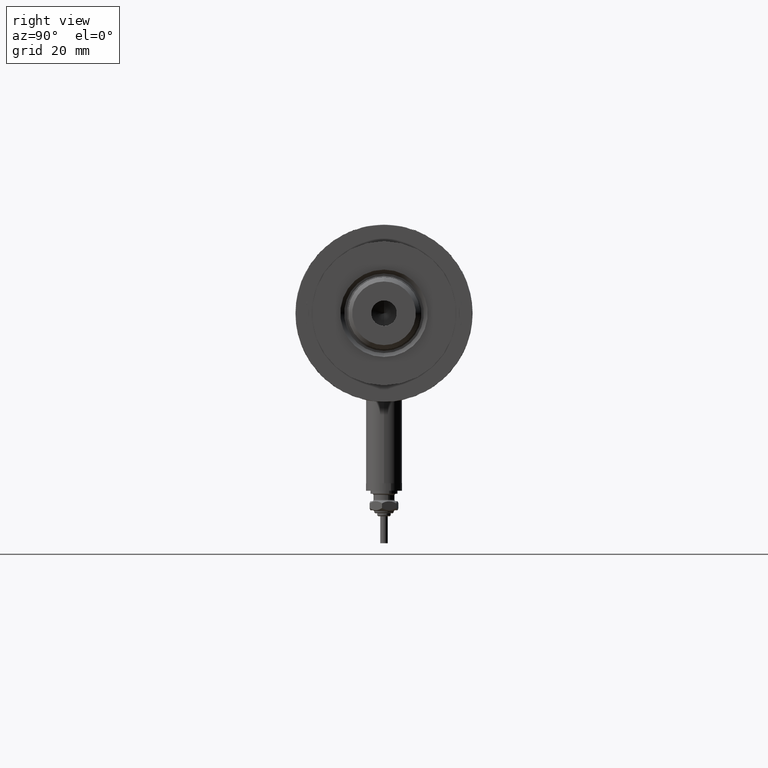
[diagram: clean part render]
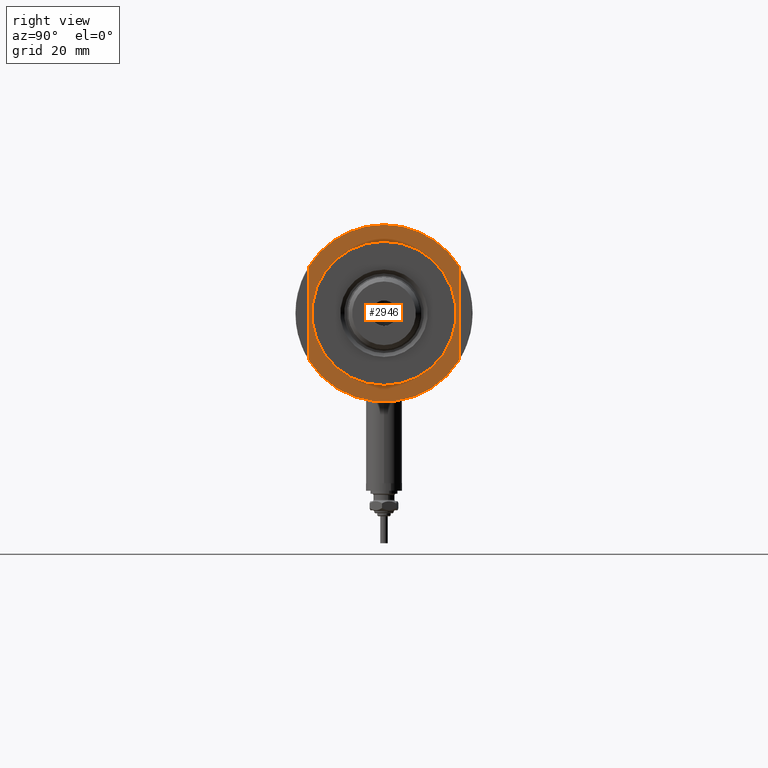
[diagram: same view with one face highlighted and labeled with its STEP entity id]
A machine part, right view. The second image highlights one B-rep face of the part: STEP entity #2946.
In plain terms, the highlighted planar face has unit normal (1, 0, -0).
Its self-contained STEP definition (entity closure, byte-faithful):
#224 = CARTESIAN_POINT ( 'NONE',  ( 0.000000000000000000, 0.000000000000000000, 21.00000000000000000 ) ) ;
#276 = ORIENTED_EDGE ( 'NONE', *, *, #3328, .T. ) ;
#454 = AXIS2_PLACEMENT_3D ( 'NONE', #3669, #3276, #5032 ) ;
#484 = VERTEX_POINT ( 'NONE', #3601 ) ;
#522 = EDGE_CURVE ( 'NONE', #2644, #4560, #1792, .T. ) ;
#681 = EDGE_CURVE ( 'NONE', #4631, #4560, #2329, .T. ) ;
#1000 = EDGE_LOOP ( 'NONE', ( #3860, #3229, #1197, #3022, #1130 ) ) ;
#1069 = DIRECTION ( 'NONE',  ( -0.000000000000000000, -0.000000000000000000, -1.000000000000000000 ) ) ;
#1130 = ORIENTED_EDGE ( 'NONE', *, *, #522, .T. ) ;
#1133 = EDGE_LOOP ( 'NONE', ( #5897, #276 ) ) ;
#1172 = EDGE_CURVE ( 'NONE', #1662, #3003, #5141, .T. ) ;
#1181 = VERTEX_POINT ( 'NONE', #5208 ) ;
#1197 = ORIENTED_EDGE ( 'NONE', *, *, #1172, .F. ) ;
#1250 = AXIS2_PLACEMENT_3D ( 'NONE', #224, #3470, #4831 ) ;
#1294 = PLANE ( 'NONE',  #2859 ) ;
#1343 = CIRCLE ( 'NONE', #1250, 29.50000000000000355 ) ;
#1462 = EDGE_CURVE ( 'NONE', #1662, #2644, #5738, .T. ) ;
#1607 = DIRECTION ( 'NONE',  ( 1.000000000000000000, 0.000000000000000000, 0.000000000000000000 ) ) ;
#1646 = DIRECTION ( 'NONE',  ( 1.000000000000000000, 0.000000000000000000, 0.000000000000000000 ) ) ;
#1662 = VERTEX_POINT ( 'NONE', #5611 ) ;
#1693 = DIRECTION ( 'NONE',  ( 1.000000000000000000, 0.000000000000000000, 0.000000000000000000 ) ) ;
#1755 = CARTESIAN_POINT ( 'NONE',  ( 0.000000000000000000, 0.000000000000000000, 21.00000000000000000 ) ) ;
#1792 = CIRCLE ( 'NONE', #4567, 29.50000000000000355 ) ;
#1956 = EDGE_CURVE ( 'NONE', #484, #1181, #4008, .T. ) ;
#2002 = DIRECTION ( 'NONE',  ( 1.000000000000000000, 0.000000000000000000, 0.000000000000000000 ) ) ;
#2020 = AXIS2_PLACEMENT_3D ( 'NONE', #3871, #1069, #1607 ) ;
#2211 = FACE_OUTER_BOUND ( 'NONE', #1000, .T. ) ;
#2329 = LINE ( 'NONE', #3277, #3060 ) ;
#2644 = VERTEX_POINT ( 'NONE', #2828 ) ;
#2664 = VECTOR ( 'NONE', #2002, 1000.000000000000000 ) ;
#2757 = CARTESIAN_POINT ( 'NONE',  ( -15.66045976336583045, -24.99999999999999645, 20.99999999999999645 ) ) ;
#2828 = CARTESIAN_POINT ( 'NONE',  ( -29.50000000000000355, 0.000000000000000000, 21.00000000000000000 ) ) ;
#2859 = AXIS2_PLACEMENT_3D ( 'NONE', #4060, #5414, #3128 ) ;
#2946 = ADVANCED_FACE ( 'NONE', ( #5812, #2211 ), #1294, .T. ) ;
#3003 = VERTEX_POINT ( 'NONE', #4757 ) ;
#3021 = CARTESIAN_POINT ( 'NONE',  ( 0.000000000000000000, 0.000000000000000000, 21.00000000000000000 ) ) ;
#3022 = ORIENTED_EDGE ( 'NONE', *, *, #1462, .T. ) ;
#3060 = VECTOR ( 'NONE', #5669, 1000.000000000000000 ) ;
#3128 = DIRECTION ( 'NONE',  ( 1.000000000000000000, 0.000000000000000000, -0.000000000000000000 ) ) ;
#3158 = AXIS2_PLACEMENT_3D ( 'NONE', #3021, #5746, #1646 ) ;
#3229 = ORIENTED_EDGE ( 'NONE', *, *, #4290, .T. ) ;
#3276 = DIRECTION ( 'NONE',  ( -0.000000000000000000, -0.000000000000000000, -1.000000000000000000 ) ) ;
#3277 = CARTESIAN_POINT ( 'NONE',  ( -15.66045976336583401, -25.00000000000000000, 21.00000000000000000 ) ) ;
#3328 = EDGE_CURVE ( 'NONE', #1181, #484, #4416, .T. ) ;
#3470 = DIRECTION ( 'NONE',  ( 0.000000000000000000, 0.000000000000000000, 1.000000000000000000 ) ) ;
#3601 = CARTESIAN_POINT ( 'NONE',  ( 24.00000000000000000, 0.000000000000000000, 21.00000000000000000 ) ) ;
#3669 = CARTESIAN_POINT ( 'NONE',  ( 0.000000000000000000, 0.000000000000000000, 21.00000000000000000 ) ) ;
#3860 = ORIENTED_EDGE ( 'NONE', *, *, #681, .F. ) ;
#3871 = CARTESIAN_POINT ( 'NONE',  ( 0.000000000000000000, 0.000000000000000000, 21.00000000000000000 ) ) ;
#4008 = CIRCLE ( 'NONE', #454, 24.00000000000000000 ) ;
#4053 = CARTESIAN_POINT ( 'NONE',  ( 15.66045976336583045, -25.00000000000000000, 21.00000000000000355 ) ) ;
#4060 = CARTESIAN_POINT ( 'NONE',  ( 0.000000000000000000, 0.000000000000000000, 21.00000000000000000 ) ) ;
#4290 = EDGE_CURVE ( 'NONE', #4631, #3003, #1343, .T. ) ;
#4416 = CIRCLE ( 'NONE', #2020, 24.00000000000000000 ) ;
#4560 = VERTEX_POINT ( 'NONE', #2757 ) ;
#4567 = AXIS2_PLACEMENT_3D ( 'NONE', #1755, #4897, #1693 ) ;
#4631 = VERTEX_POINT ( 'NONE', #4053 ) ;
#4651 = CARTESIAN_POINT ( 'NONE',  ( -15.66045976336583401, 25.00000000000000000, 21.00000000000000000 ) ) ;
#4757 = CARTESIAN_POINT ( 'NONE',  ( 15.66045976336583045, 24.99999999999999645, 20.99999999999999645 ) ) ;
#4831 = DIRECTION ( 'NONE',  ( 1.000000000000000000, 0.000000000000000000, 0.000000000000000000 ) ) ;
#4897 = DIRECTION ( 'NONE',  ( 0.000000000000000000, 0.000000000000000000, 1.000000000000000000 ) ) ;
#5032 = DIRECTION ( 'NONE',  ( 1.000000000000000000, 0.000000000000000000, 0.000000000000000000 ) ) ;
#5141 = LINE ( 'NONE', #4651, #2664 ) ;
#5208 = CARTESIAN_POINT ( 'NONE',  ( -24.00000000000000000, 2.939152317953647894E-15, 21.00000000000000000 ) ) ;
#5414 = DIRECTION ( 'NONE',  ( 0.000000000000000000, 0.000000000000000000, 1.000000000000000000 ) ) ;
#5611 = CARTESIAN_POINT ( 'NONE',  ( -15.66045976336583045, 24.99999999999999645, 21.00000000000000355 ) ) ;
#5669 = DIRECTION ( 'NONE',  ( -1.000000000000000000, -0.000000000000000000, -0.000000000000000000 ) ) ;
#5738 = CIRCLE ( 'NONE', #3158, 29.50000000000000355 ) ;
#5746 = DIRECTION ( 'NONE',  ( 0.000000000000000000, 0.000000000000000000, 1.000000000000000000 ) ) ;
#5812 = FACE_BOUND ( 'NONE', #1133, .T. ) ;
#5897 = ORIENTED_EDGE ( 'NONE', *, *, #1956, .T. ) ;